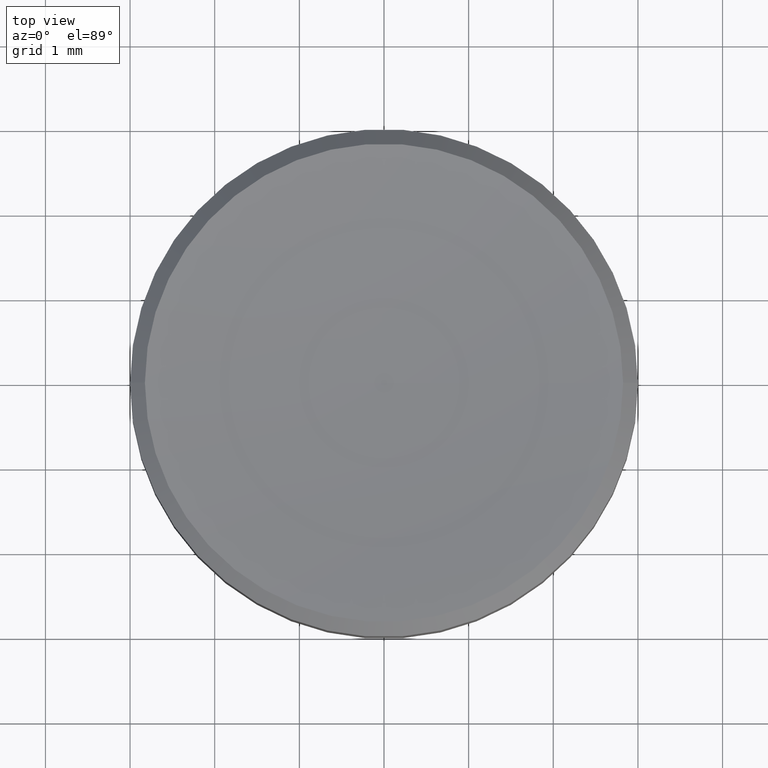
[diagram: clean part render]
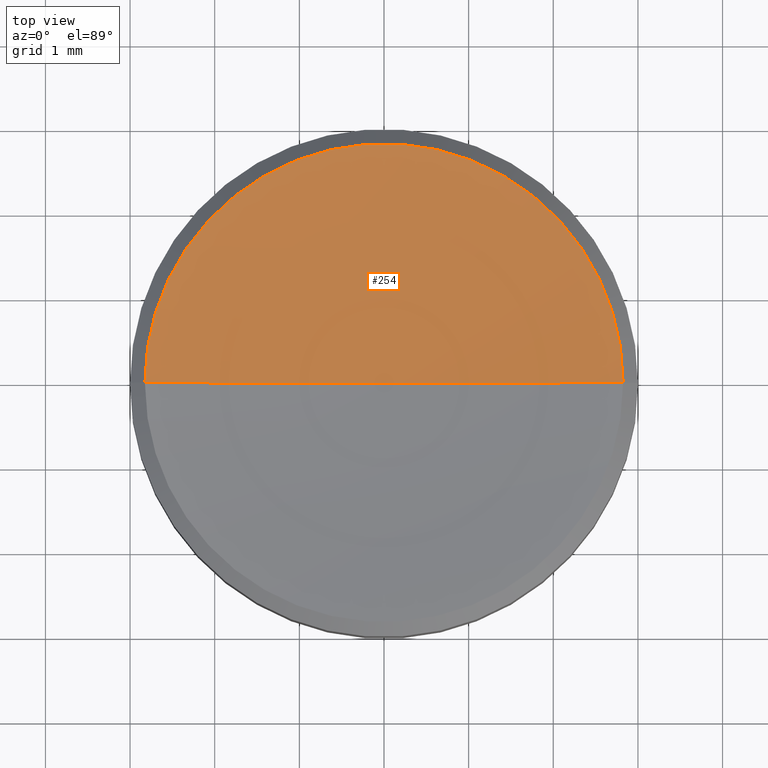
[diagram: same view with one face highlighted and labeled with its STEP entity id]
A machine part, top view. The second image highlights one B-rep face of the part: STEP entity #254.
In plain terms, the highlighted toroidal blend (fillet) surface has major radius 0.0063 mm and minor (blend) radius 20.65 mm.
Its self-contained STEP definition (entity closure, byte-faithful):
#4 = CIRCLE ( 'NONE', #125, 2.824988047808446812 ) ;
#15 = DIRECTION ( 'NONE',  ( -0.000000000000000000, -0.000000000000000000, 1.000000000000000000 ) ) ;
#21 = CIRCLE ( 'NONE', #216, 20.64999999999999858 ) ;
#29 = AXIS2_PLACEMENT_3D ( 'NONE', #238, #204, #37 ) ;
#32 = CARTESIAN_POINT ( 'NONE',  ( 0.000000000000000000, 0.000000000000000000, 1.500000000000000000 ) ) ;
#37 = DIRECTION ( 'NONE',  ( 1.000000000000000000, 0.000000000000000000, 0.000000000000000000 ) ) ;
#47 = CIRCLE ( 'NONE', #102, 20.64999999999999858 ) ;
#51 = CARTESIAN_POINT ( 'NONE',  ( 2.824988047808473013, 0.000000000000000000, 1.695011952191558091 ) ) ;
#52 = ORIENTED_EDGE ( 'NONE', *, *, #231, .F. ) ;
#56 = CARTESIAN_POINT ( 'NONE',  ( -0.006266596937432424366, 0.000000000000000000, 22.14999904914677842 ) ) ;
#57 = VERTEX_POINT ( 'NONE', #193 ) ;
#69 = DIRECTION ( 'NONE',  ( -1.000000000000000000, 1.224646799147353207E-16, 0.000000000000000000 ) ) ;
#102 = AXIS2_PLACEMENT_3D ( 'NONE', #212, #250, #69 ) ;
#115 = TOROIDAL_SURFACE ( 'NONE', #29, -0.006266596937432424366, 20.64999999999999858 ) ;
#118 = FACE_OUTER_BOUND ( 'NONE', #219, .T. ) ;
#125 = AXIS2_PLACEMENT_3D ( 'NONE', #234, #15, #178 ) ;
#135 = DIRECTION ( 'NONE',  ( 0.000000000000000000, -1.000000000000000000, 0.000000000000000000 ) ) ;
#139 = ORIENTED_EDGE ( 'NONE', *, *, #262, .T. ) ;
#157 = VERTEX_POINT ( 'NONE', #32 ) ;
#176 = ORIENTED_EDGE ( 'NONE', *, *, #177, .T. ) ;
#177 = EDGE_CURVE ( 'NONE', #157, #225, #21, .T. ) ;
#178 = DIRECTION ( 'NONE',  ( 1.000000000000000000, 0.000000000000000000, 0.000000000000000000 ) ) ;
#193 = CARTESIAN_POINT ( 'NONE',  ( -2.824988047808473013, 3.459612570378175633E-16, 1.695011952191558091 ) ) ;
#204 = DIRECTION ( 'NONE',  ( -0.000000000000000000, -0.000000000000000000, 1.000000000000000000 ) ) ;
#212 = CARTESIAN_POINT ( 'NONE',  ( 0.006266596937432424366, -7.674367880973224398E-19, 22.14999904914677842 ) ) ;
#216 = AXIS2_PLACEMENT_3D ( 'NONE', #56, #135, #218 ) ;
#218 = DIRECTION ( 'NONE',  ( 0.000000000000000000, 0.000000000000000000, -1.000000000000000000 ) ) ;
#219 = EDGE_LOOP ( 'NONE', ( #52, #176, #139 ) ) ;
#225 = VERTEX_POINT ( 'NONE', #51 ) ;
#231 = EDGE_CURVE ( 'NONE', #157, #57, #47, .T. ) ;
#234 = CARTESIAN_POINT ( 'NONE',  ( 0.000000000000000000, 0.000000000000000000, 1.695011952191558091 ) ) ;
#238 = CARTESIAN_POINT ( 'NONE',  ( 0.000000000000000000, 0.000000000000000000, 22.14999904914677842 ) ) ;
#250 = DIRECTION ( 'NONE',  ( 1.224646799147353207E-16, 1.000000000000000000, 0.000000000000000000 ) ) ;
#254 = ADVANCED_FACE ( 'NONE', ( #118 ), #115, .F. ) ;
#262 = EDGE_CURVE ( 'NONE', #225, #57, #4, .T. ) ;